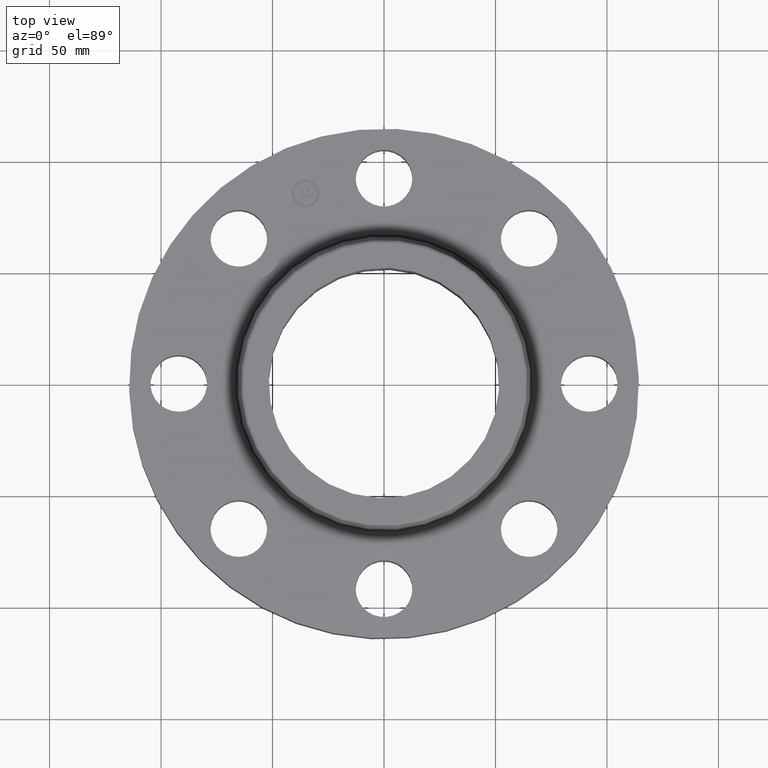
[diagram: clean part render]
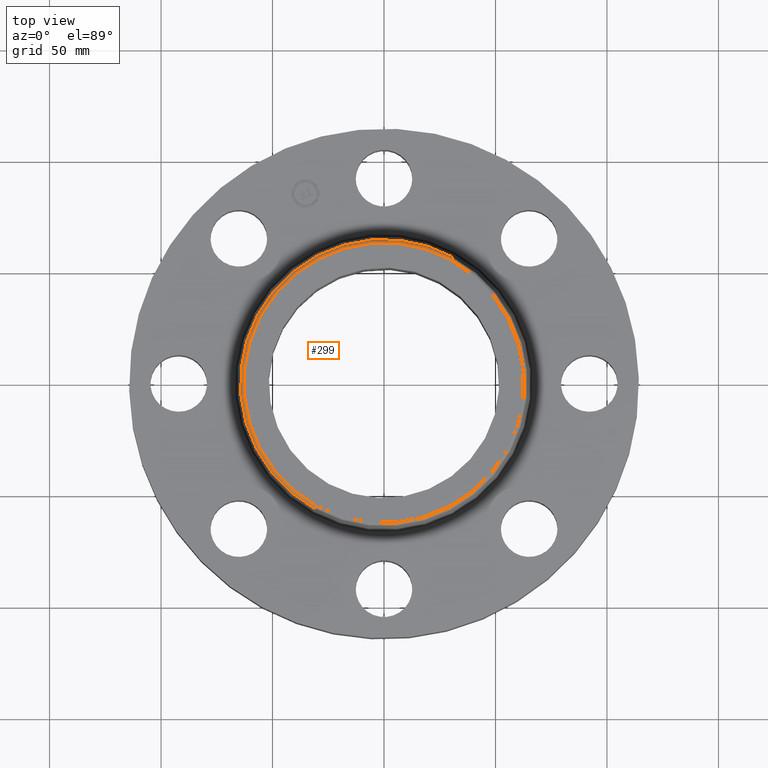
[diagram: same view with one face highlighted and labeled with its STEP entity id]
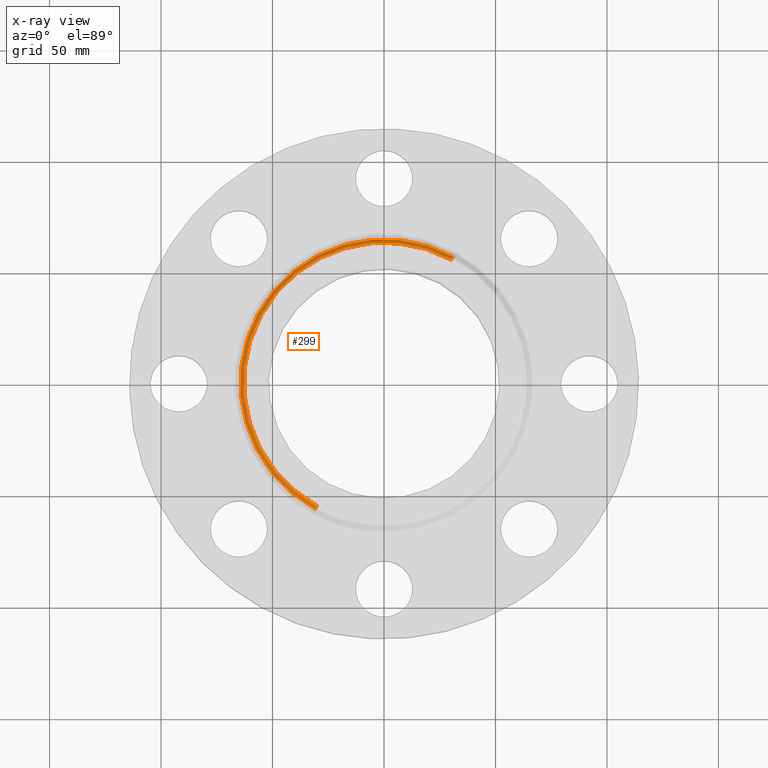
[diagram: x-ray of the same camera — body ghosted, the highlighted face saturated]
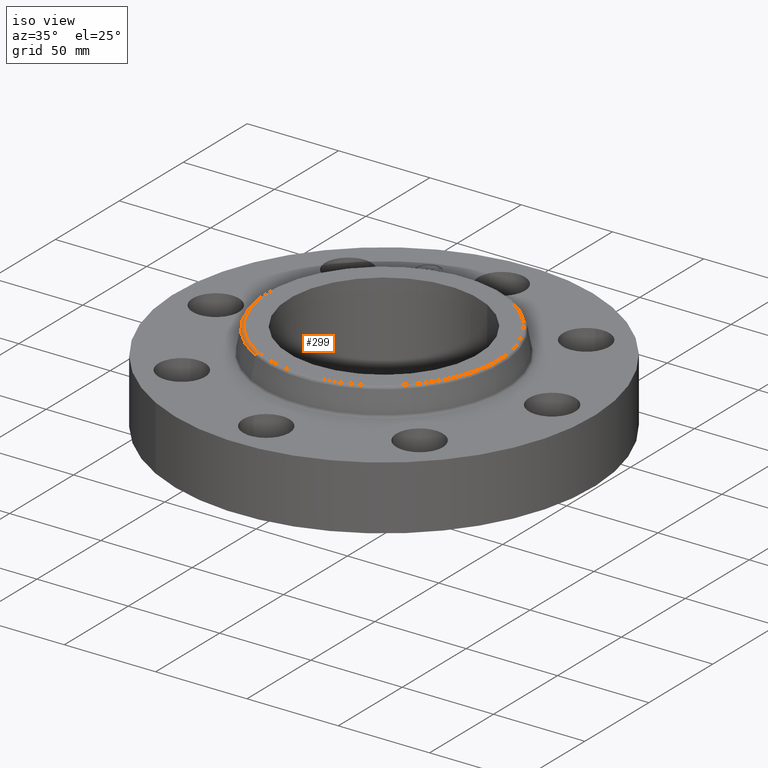
[diagram: same view with one face highlighted and labeled with its STEP entity id]
A machine part, top view. The second image highlights one B-rep face of the part: STEP entity #299.
The next image is the same camera in x-ray: the body ghosted, the highlighted face saturated — about 0% of this face is hidden behind the body in this view.
A second angle (iso view) of the same face is appended — the face is thin or edge-on in the first view.
In plain terms, the highlighted toroidal blend (fillet) surface has major radius 62.8881 mm and minor (blend) radius 1.524 mm.
Its self-contained STEP definition (entity closure, byte-faithful):
#247=AXIS2_PLACEMENT_3D('Circle Axis2P3D',#245,#246,$) ;
#260=AXIS2_PLACEMENT_3D('Torus Axis2P3D',#257,#258,#259) ;
#264=AXIS2_PLACEMENT_3D('Circle Axis2P3D',#262,#263,$) ;
#278=AXIS2_PLACEMENT_3D('Circle Axis2P3D',#276,#277,$) ;
#290=AXIS2_PLACEMENT_3D('Circle Axis2P3D',#288,#289,$) ;
#223=CARTESIAN_POINT('Vertex',(1.21534344222,2.22467124864,1.89041889067)) ;
#230=CARTESIAN_POINT('Vertex',(-1.21534344222,-2.22467124864,1.89041889067)) ;
#245=CARTESIAN_POINT('Axis2P3D Location',(0.,0.,1.89041889067)) ;
#257=CARTESIAN_POINT('Axis2P3D Location',(0.,0.,1.88000000001)) ;
#262=CARTESIAN_POINT('Axis2P3D Location',(1.18701492297,2.17281624199,1.88000000001)) ;
#266=CARTESIAN_POINT('Vertex',(1.18701492297,2.17281624199,1.94000000001)) ;
#273=CARTESIAN_POINT('Vertex',(-1.18701492297,-2.17281624199,1.94000000001)) ;
#276=CARTESIAN_POINT('Axis2P3D Location',(-1.18701492297,-2.17281624199,1.88000000001)) ;
#288=CARTESIAN_POINT('Axis2P3D Location',(0.,0.,1.94000000001)) ;
#246=DIRECTION('Axis2P3D Direction',(0.,0.,-0.0393700787402)) ;
#258=DIRECTION('Axis2P3D Direction',(0.,0.,-0.0393700787402)) ;
#259=DIRECTION('Axis2P3D XDirection',(-0.0188750212049,-0.0345504945626,0.)) ;
#263=DIRECTION('Axis2P3D Direction',(-0.0345504945626,0.0188750212049,0.)) ;
#277=DIRECTION('Axis2P3D Direction',(0.0345504945626,-0.0188750212049,0.)) ;
#289=DIRECTION('Axis2P3D Direction',(0.,0.,-0.0393700787402)) ;
#294=ORIENTED_EDGE('',*,*,#249,.F.) ;
#295=ORIENTED_EDGE('',*,*,#280,.T.) ;
#296=ORIENTED_EDGE('',*,*,#292,.T.) ;
#297=ORIENTED_EDGE('',*,*,#268,.F.) ;
#299=ADVANCED_FACE('PartBody',(#298),#261,.T.) ;
#248=CIRCLE('generated circle',#247,2.53499937812) ;
#265=CIRCLE('generated circle',#264,0.0600000000002) ;
#279=CIRCLE('generated circle',#278,0.0600000000002) ;
#291=CIRCLE('generated circle',#290,2.47591091294) ;
#261=TOROIDAL_SURFACE('homeo Torus',#260,2.47591091294,0.0600000000002) ;
#249=EDGE_CURVE('',#231,#224,#248,.T.) ;
#268=EDGE_CURVE('',#224,#267,#265,.F.) ;
#280=EDGE_CURVE('',#231,#274,#279,.F.) ;
#292=EDGE_CURVE('',#274,#267,#291,.T.) ;
#293=EDGE_LOOP('',(#294,#295,#296,#297)) ;
#298=FACE_OUTER_BOUND('',#293,.T.) ;
#224=VERTEX_POINT('',#223) ;
#231=VERTEX_POINT('',#230) ;
#267=VERTEX_POINT('',#266) ;
#274=VERTEX_POINT('',#273) ;